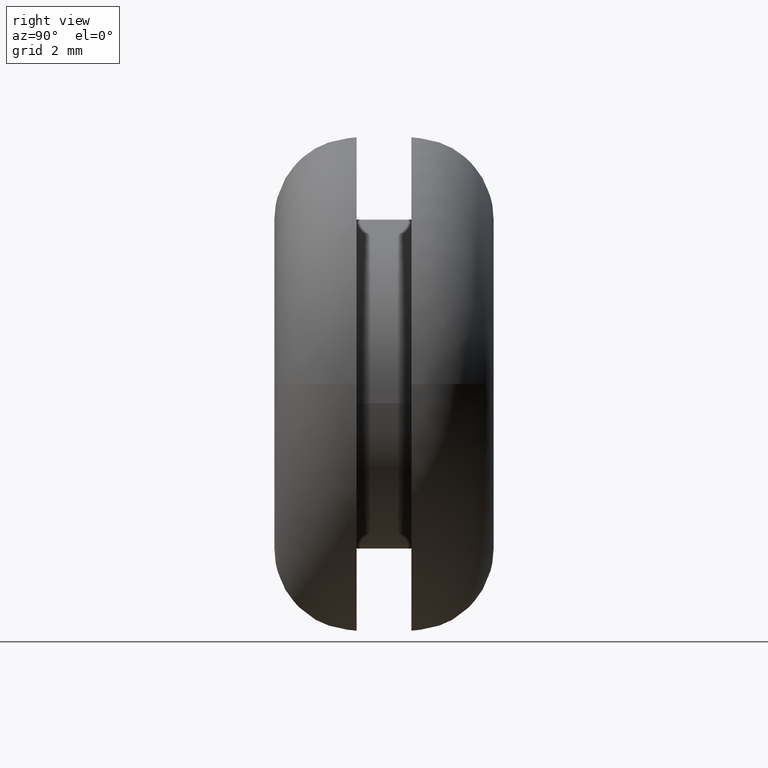
[diagram: clean part render]
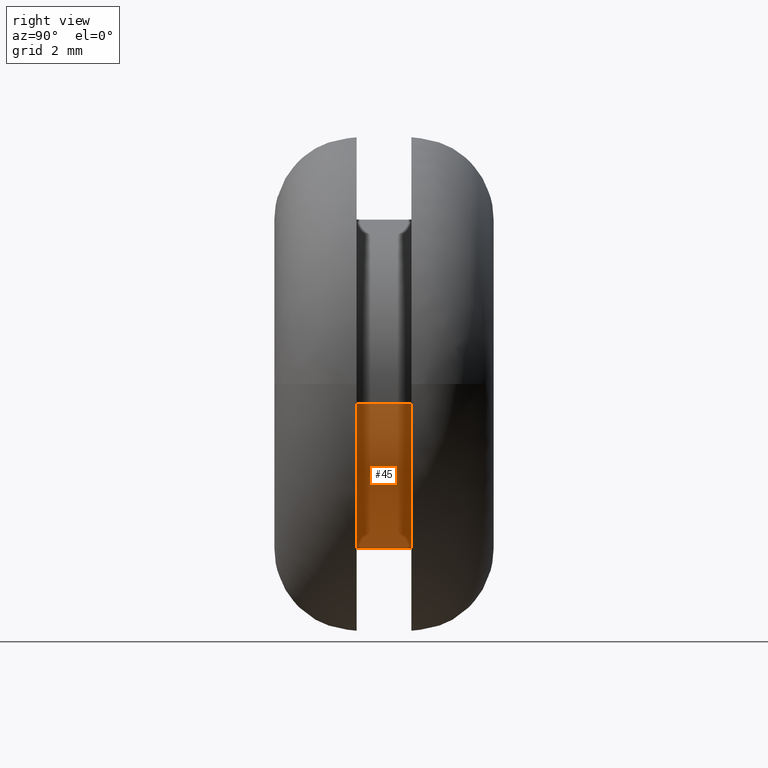
[diagram: same view with one face highlighted and labeled with its STEP entity id]
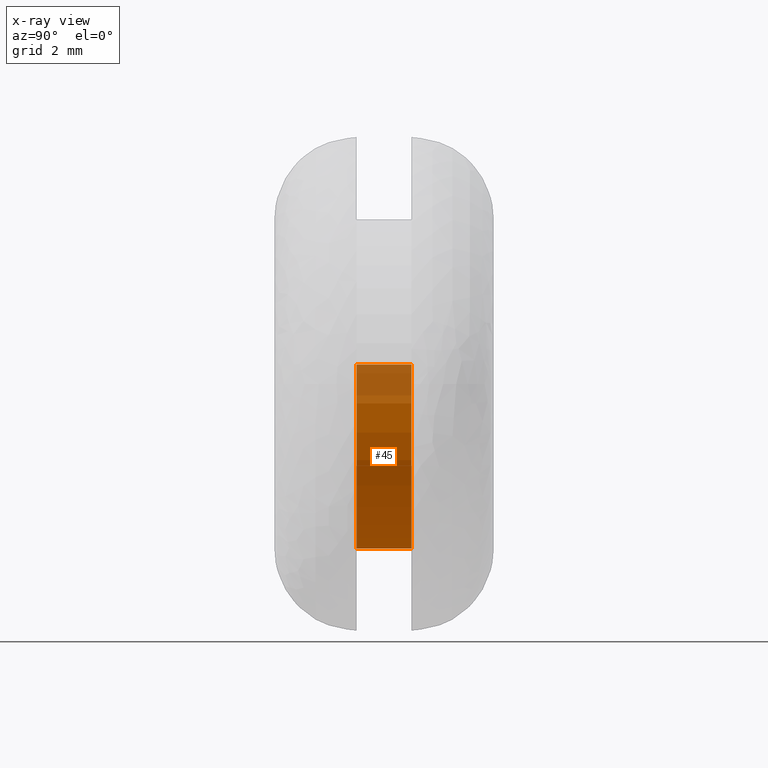
[diagram: x-ray of the same camera — body ghosted, the highlighted face saturated]
A machine part, right view. The second image highlights one B-rep face of the part: STEP entity #45.
The next image is the same camera in x-ray: the body ghosted, the highlighted face saturated — about 21% of this face is hidden behind the body in this view.
In plain terms, the highlighted cylindrical surface (partial cylindrical patch) has radius 6 mm, axis along (0, 1, 0).
Its self-contained STEP definition (entity closure, byte-faithful):
#45=ADVANCED_FACE('',(#107),#106,.T.);
#106=CYLINDRICAL_SURFACE('',#208,6.00000000000E+000);
#107=FACE_OUTER_BOUND('',#209,.T.);
#205=CARTESIAN_POINT('',(1.02385100091E-015,5.05000000000E+000,5.00238967592E-015));
#206=DIRECTION('',(6.32731223210E-016,1.00000000000E+000,5.95016354896E-015));
#207=DIRECTION('',(-9.93009526364E-001,-7.40148683084E-017,1.18034234657E-001));
#208=AXIS2_PLACEMENT_3D('',#205,#206,#207);
#209=EDGE_LOOP('',(#357,#358,#359,#360,#361,#362));
#357=ORIENTED_EDGE('',*,*,#418,.F.);
#358=ORIENTED_EDGE('',*,*,#420,.F.);
#359=ORIENTED_EDGE('',*,*,#427,.T.);
#360=ORIENTED_EDGE('',*,*,#403,.T.);
#361=ORIENTED_EDGE('',*,*,#405,.T.);
#362=ORIENTED_EDGE('',*,*,#428,.F.);
#403=EDGE_CURVE('',#470,#471,#472,.T.);
#405=EDGE_CURVE('',#471,#478,#485,.T.);
#418=EDGE_CURVE('',#575,#576,#577,.T.);
#420=EDGE_CURVE('',#583,#575,#590,.T.);
#427=EDGE_CURVE('',#583,#470,#638,.T.);
#428=EDGE_CURVE('',#576,#478,#644,.T.);
#470=VERTEX_POINT('',#711);
#471=VERTEX_POINT('',#712);
#472=CIRCLE('',#716,6.00000000000E+000);
#478=VERTEX_POINT('',#717);
#485=CIRCLE('',#725,6.00000000000E+000);
#575=VERTEX_POINT('',#786);
#576=VERTEX_POINT('',#787);
#577=CIRCLE('',#791,6.00000000000E+000);
#583=VERTEX_POINT('',#792);
#590=CIRCLE('',#800,6.00000000000E+000);
#638=(BOUNDED_CURVE() B_SPLINE_CURVE(1,(#831,#832),.UNSPECIFIED.,.F.,.F.) B_SPLINE_CURVE_WITH_KNOTS((2,2),(8.33333134656E-002,9.16666653270E-001),.UNSPECIFIED.) CURVE() GEOMETRIC_REPRESENTATION_ITEM() RATIONAL_B_SPLINE_CURVE((1.00000000000E+000,1.00000000000E+000)) REPRESENTATION_ITEM('') );
#644=(BOUNDED_CURVE() B_SPLINE_CURVE(1,(#833,#834),.UNSPECIFIED.,.F.,.F.) B_SPLINE_CURVE_WITH_KNOTS((2,2),(8.33333333338E-002,9.16666666667E-001),.UNSPECIFIED.) CURVE() GEOMETRIC_REPRESENTATION_ITEM() RATIONAL_B_SPLINE_CURVE((7.50000000000E-001,7.50000000000E-001)) REPRESENTATION_ITEM('') );
#711=CARTESIAN_POINT('',(-5.95805741716E+000,5.00000000000E+000,7.08203229113E-001));
#712=CARTESIAN_POINT('',(-2.99760216649E-015,5.00000000000E+000,-5.99999999999E+000));
#713=CARTESIAN_POINT('',(2.10320649785E-012,5.00000000000E+000,4.62696547743E-012));
#714=DIRECTION('',(-8.03066684532E-017,-1.00000000000E+000,-6.75617347872E-016));
#715=DIRECTION('',(-3.50677820116E-013,6.75617347873E-016,-1.00000000000E+000));
#716=AXIS2_PLACEMENT_3D('',#713,#714,#715);
#717=CARTESIAN_POINT('',(5.95793466535E+000,5.00000000000E+000,-7.09235167920E-001));
#722=CARTESIAN_POINT('',(2.10320649785E-012,5.00000000000E+000,4.62696547743E-012));
#723=DIRECTION('',(-8.03066684532E-017,-1.00000000000E+000,-6.75617347872E-016));
#724=DIRECTION('',(-3.50677820116E-013,6.75617347873E-016,-1.00000000000E+000));
#725=AXIS2_PLACEMENT_3D('',#722,#723,#724);
#786=CARTESIAN_POINT('',(8.88178419700E-016,3.00000000000E+000,-5.99999999999E+000));
#787=CARTESIAN_POINT('',(5.95793466535E+000,3.00000000000E+000,-7.09235167920E-001));
#788=CARTESIAN_POINT('',(2.15960582750E-012,3.00000000000E+000,4.74686956409E-012));
#789=DIRECTION('',(-1.31055708038E-014,-1.00000000000E+000,-8.89364293804E-014));
#790=DIRECTION('',(-3.59434704222E-013,8.89364293804E-014,-1.00000000000E+000));
#791=AXIS2_PLACEMENT_3D('',#788,#789,#790);
#792=CARTESIAN_POINT('',(-5.95805741716E+000,3.00000000000E+000,7.08203229113E-001));
#797=CARTESIAN_POINT('',(2.15960582750E-012,3.00000000000E+000,4.74686956409E-012));
#798=DIRECTION('',(-1.31055708038E-014,-1.00000000000E+000,-8.89364293804E-014));
#799=DIRECTION('',(-3.59434704222E-013,8.89364293804E-014,-1.00000000000E+000));
#800=AXIS2_PLACEMENT_3D('',#797,#798,#799);
#831=CARTESIAN_POINT('',(-5.95805715818E+000,2.99999995232E+000,7.08205407941E-001));
#832=CARTESIAN_POINT('',(-5.95805715818E+000,4.99999996785E+000,7.08205407941E-001));
#833=CARTESIAN_POINT('',(5.95805715818E+000,3.00000000000E+000,-7.08205407941E-001));
#834=CARTESIAN_POINT('',(5.95805715818E+000,5.00000000000E+000,-7.08205407941E-001));